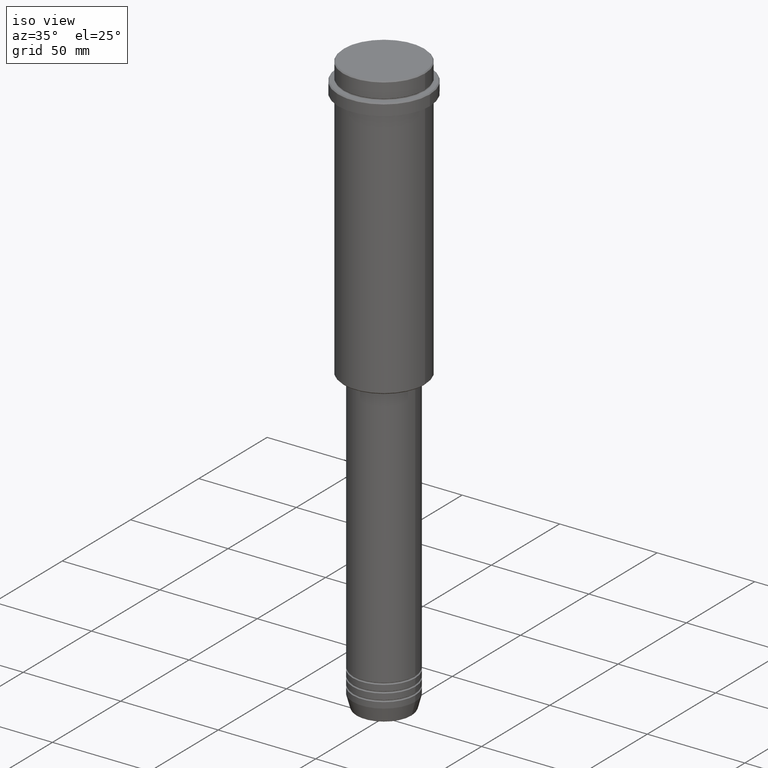
[diagram: clean part render]
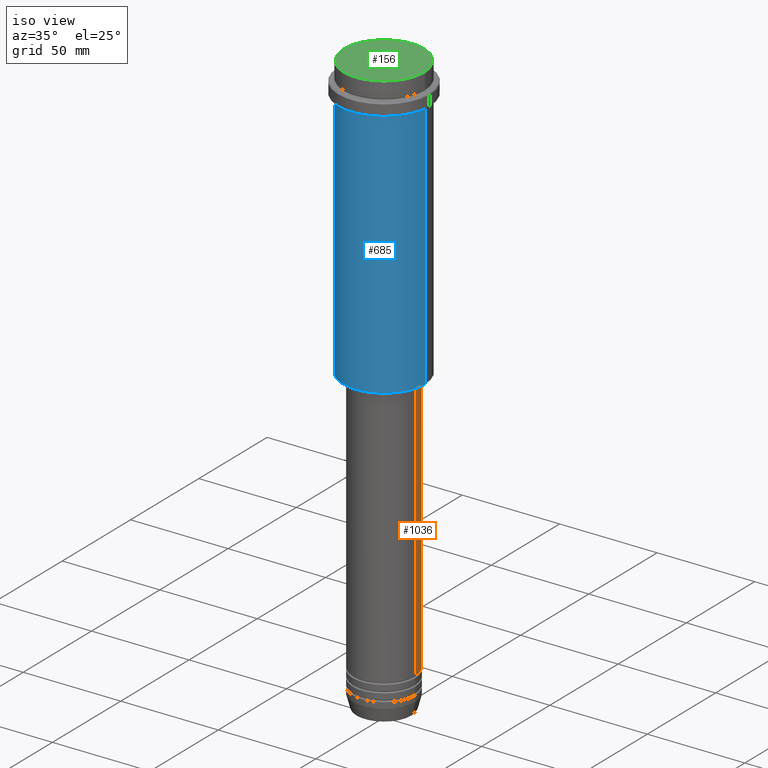
[diagram: same view with three faces highlighted in distinct colors, each labeled with its STEP entity id]
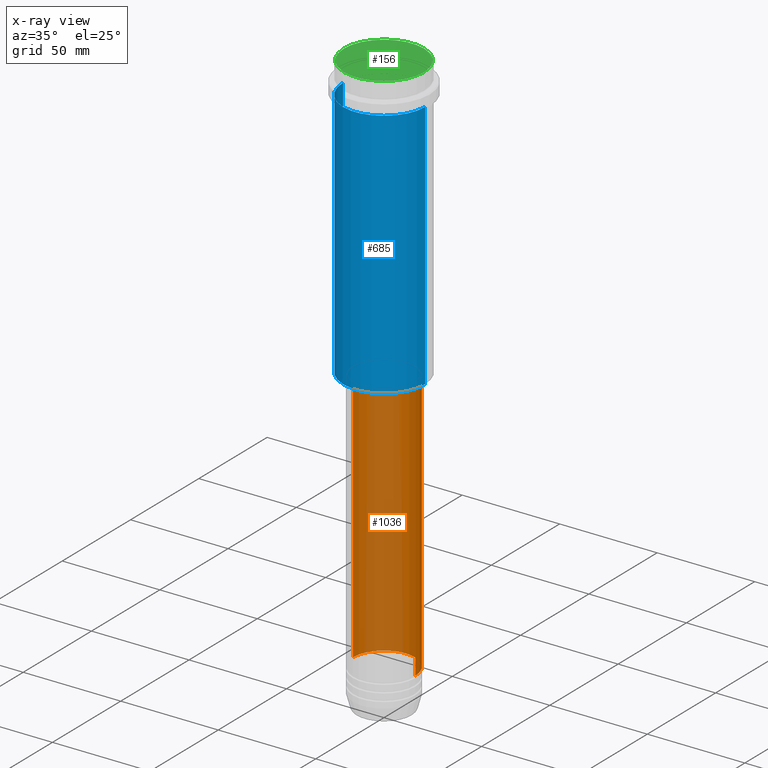
[diagram: x-ray of the same camera — body ghosted, the three highlighted faces saturated]
A machine part, iso view with three faces highlighted in distinct colors.
The next image is the same camera in x-ray (body ghosted, the three faces saturated) — at least one of them is partly hidden behind the body in this view.
Their STEP definitions:

[orange] entity #1036 — the highlighted cylindrical surface (partial cylindrical patch) has radius 16 mm, axis along (-0, -0, 1).
#27 = DIRECTION ( 'NONE',  ( -0.000000000000000000, -0.000000000000000000, 1.000000000000000000 ) ) ;
#72 = ORIENTED_EDGE ( 'NONE', *, *, #555, .T. ) ;
#89 = DIRECTION ( 'NONE',  ( 1.000000000000000000, 0.000000000000000000, 0.000000000000000000 ) ) ;
#189 = CARTESIAN_POINT ( 'NONE',  ( 0.000000000000000000, 0.000000000000000000, -280.9999999999998863 ) ) ;
#200 = VERTEX_POINT ( 'NONE', #1160 ) ;
#205 = DIRECTION ( 'NONE',  ( 1.000000000000000000, 0.000000000000000000, 0.000000000000000000 ) ) ;
#248 = EDGE_LOOP ( 'NONE', ( #853, #72, #844, #1037 ) ) ;
#263 = CARTESIAN_POINT ( 'NONE',  ( 16.00000000000000355, 0.000000000000000000, -145.9999999999999147 ) ) ;
#283 = DIRECTION ( 'NONE',  ( -0.000000000000000000, -0.000000000000000000, 1.000000000000000000 ) ) ;
#327 = CIRCLE ( 'NONE', #498, 16.00000000000000000 ) ;
#367 = AXIS2_PLACEMENT_3D ( 'NONE', #422, #1091, #205 ) ;
#384 = CYLINDRICAL_SURFACE ( 'NONE', #866, 16.00000000000000000 ) ;
#396 = VERTEX_POINT ( 'NONE', #1114 ) ;
#422 = CARTESIAN_POINT ( 'NONE',  ( 0.000000000000000000, 0.000000000000000000, -145.9999999999999147 ) ) ;
#444 = EDGE_CURVE ( 'NONE', #396, #1258, #682, .T. ) ;
#466 = CARTESIAN_POINT ( 'NONE',  ( -16.00000000000000000, 1.959434878635765131E-15, 0.000000000000000000 ) ) ;
#498 = AXIS2_PLACEMENT_3D ( 'NONE', #189, #1060, #89 ) ;
#502 = FACE_OUTER_BOUND ( 'NONE', #248, .T. ) ;
#511 = EDGE_CURVE ( 'NONE', #1258, #200, #749, .T. ) ;
#555 = EDGE_CURVE ( 'NONE', #1408, #200, #999, .T. ) ;
#682 = LINE ( 'NONE', #870, #1402 ) ;
#749 = CIRCLE ( 'NONE', #367, 16.00000000000000355 ) ;
#844 = ORIENTED_EDGE ( 'NONE', *, *, #511, .F. ) ;
#853 = ORIENTED_EDGE ( 'NONE', *, *, #1017, .T. ) ;
#866 = AXIS2_PLACEMENT_3D ( 'NONE', #1259, #283, #1154 ) ;
#870 = CARTESIAN_POINT ( 'NONE',  ( 16.00000000000000000, 0.000000000000000000, 0.000000000000000000 ) ) ;
#877 = DIRECTION ( 'NONE',  ( -0.000000000000000000, -0.000000000000000000, 1.000000000000000000 ) ) ;
#999 = LINE ( 'NONE', #466, #1094 ) ;
#1017 = EDGE_CURVE ( 'NONE', #396, #1408, #327, .T. ) ;
#1036 = ADVANCED_FACE ( 'NONE', ( #502 ), #384, .T. ) ;
#1037 = ORIENTED_EDGE ( 'NONE', *, *, #444, .F. ) ;
#1060 = DIRECTION ( 'NONE',  ( -0.000000000000000000, -0.000000000000000000, 1.000000000000000000 ) ) ;
#1091 = DIRECTION ( 'NONE',  ( -0.000000000000000000, -0.000000000000000000, 1.000000000000000000 ) ) ;
#1094 = VECTOR ( 'NONE', #27, 1000.000000000000000 ) ;
#1114 = CARTESIAN_POINT ( 'NONE',  ( 16.00000000000000000, 0.000000000000000000, -280.9999999999998863 ) ) ;
#1154 = DIRECTION ( 'NONE',  ( 1.000000000000000000, 0.000000000000000000, 0.000000000000000000 ) ) ;
#1160 = CARTESIAN_POINT ( 'NONE',  ( -16.00000000000000355, 1.959434878635765526E-15, -145.9999999999999147 ) ) ;
#1246 = CARTESIAN_POINT ( 'NONE',  ( -16.00000000000000000, 1.959434878635765131E-15, -280.9999999999998863 ) ) ;
#1258 = VERTEX_POINT ( 'NONE', #263 ) ;
#1259 = CARTESIAN_POINT ( 'NONE',  ( 0.000000000000000000, 0.000000000000000000, 0.000000000000000000 ) ) ;
#1402 = VECTOR ( 'NONE', #877, 1000.000000000000000 ) ;
#1408 = VERTEX_POINT ( 'NONE', #1246 ) ;

[blue] entity #685 — the highlighted cylindrical surface (partial cylindrical patch) has radius 21 mm, axis along (-0, -0, 1).
#14 = CIRCLE ( 'NONE', #638, 21.00000000000000000 ) ;
#28 = LINE ( 'NONE', #1232, #536 ) ;
#45 = VERTEX_POINT ( 'NONE', #250 ) ;
#102 = AXIS2_PLACEMENT_3D ( 'NONE', #1018, #673, #1348 ) ;
#120 = CARTESIAN_POINT ( 'NONE',  ( 21.00000000000000000, 0.000000000000000000, -16.00000000000000355 ) ) ;
#123 = AXIS2_PLACEMENT_3D ( 'NONE', #1347, #360, #1235 ) ;
#143 = CARTESIAN_POINT ( 'NONE',  ( 21.00000000000000000, 0.000000000000000000, -144.5000000000000568 ) ) ;
#147 = EDGE_CURVE ( 'NONE', #437, #45, #706, .T. ) ;
#250 = CARTESIAN_POINT ( 'NONE',  ( -21.00000000000000000, 2.571758278209441661E-15, -16.00000000000000355 ) ) ;
#267 = FACE_OUTER_BOUND ( 'NONE', #733, .T. ) ;
#323 = ORIENTED_EDGE ( 'NONE', *, *, #147, .F. ) ;
#360 = DIRECTION ( 'NONE',  ( -0.000000000000000000, -0.000000000000000000, 1.000000000000000000 ) ) ;
#379 = ORIENTED_EDGE ( 'NONE', *, *, #826, .F. ) ;
#397 = DIRECTION ( 'NONE',  ( -0.000000000000000000, -0.000000000000000000, 1.000000000000000000 ) ) ;
#437 = VERTEX_POINT ( 'NONE', #768 ) ;
#512 = VECTOR ( 'NONE', #397, 1000.000000000000000 ) ;
#524 = ORIENTED_EDGE ( 'NONE', *, *, #949, .T. ) ;
#536 = VECTOR ( 'NONE', #1117, 1000.000000000000000 ) ;
#537 = VERTEX_POINT ( 'NONE', #120 ) ;
#579 = CARTESIAN_POINT ( 'NONE',  ( 0.000000000000000000, 0.000000000000000000, -144.5000000000000568 ) ) ;
#583 = EDGE_CURVE ( 'NONE', #622, #537, #28, .T. ) ;
#605 = DIRECTION ( 'NONE',  ( -0.000000000000000000, -0.000000000000000000, 1.000000000000000000 ) ) ;
#622 = VERTEX_POINT ( 'NONE', #143 ) ;
#638 = AXIS2_PLACEMENT_3D ( 'NONE', #579, #605, #821 ) ;
#659 = CIRCLE ( 'NONE', #102, 21.00000000000000000 ) ;
#673 = DIRECTION ( 'NONE',  ( -0.000000000000000000, -0.000000000000000000, 1.000000000000000000 ) ) ;
#685 = ADVANCED_FACE ( 'NONE', ( #267 ), #910, .T. ) ;
#706 = LINE ( 'NONE', #941, #512 ) ;
#733 = EDGE_LOOP ( 'NONE', ( #323, #524, #1300, #379 ) ) ;
#768 = CARTESIAN_POINT ( 'NONE',  ( -21.00000000000000000, 2.571758278209441661E-15, -144.5000000000000568 ) ) ;
#821 = DIRECTION ( 'NONE',  ( -1.000000000000000000, 0.000000000000000000, 0.000000000000000000 ) ) ;
#826 = EDGE_CURVE ( 'NONE', #45, #537, #659, .T. ) ;
#910 = CYLINDRICAL_SURFACE ( 'NONE', #123, 21.00000000000000000 ) ;
#941 = CARTESIAN_POINT ( 'NONE',  ( -21.00000000000000000, 2.571758278209441661E-15, 0.000000000000000000 ) ) ;
#949 = EDGE_CURVE ( 'NONE', #437, #622, #14, .T. ) ;
#1018 = CARTESIAN_POINT ( 'NONE',  ( 0.000000000000000000, 0.000000000000000000, -16.00000000000000355 ) ) ;
#1117 = DIRECTION ( 'NONE',  ( -0.000000000000000000, -0.000000000000000000, 1.000000000000000000 ) ) ;
#1232 = CARTESIAN_POINT ( 'NONE',  ( 21.00000000000000000, 0.000000000000000000, 0.000000000000000000 ) ) ;
#1235 = DIRECTION ( 'NONE',  ( 1.000000000000000000, 0.000000000000000000, 0.000000000000000000 ) ) ;
#1300 = ORIENTED_EDGE ( 'NONE', *, *, #583, .T. ) ;
#1347 = CARTESIAN_POINT ( 'NONE',  ( 0.000000000000000000, 0.000000000000000000, 0.000000000000000000 ) ) ;
#1348 = DIRECTION ( 'NONE',  ( 1.000000000000000000, 0.000000000000000000, 0.000000000000000000 ) ) ;

[green] entity #156 — the highlighted planar face has unit normal (0, -0, 1).
#9 = AXIS2_PLACEMENT_3D ( 'NONE', #751, #1125, #357 ) ;
#61 = DIRECTION ( 'NONE',  ( 0.000000000000000000, -0.000000000000000000, 1.000000000000000000 ) ) ;
#156 = ADVANCED_FACE ( 'NONE', ( #1153 ), #813, .T. ) ;
#175 = DIRECTION ( 'NONE',  ( -0.000000000000000000, -0.000000000000000000, 1.000000000000000000 ) ) ;
#177 = DIRECTION ( 'NONE',  ( 1.000000000000000000, 0.000000000000000000, 0.000000000000000000 ) ) ;
#188 = CARTESIAN_POINT ( 'NONE',  ( 0.000000000000000000, 0.000000000000000000, 0.000000000000000000 ) ) ;
#202 = CARTESIAN_POINT ( 'NONE',  ( 20.50000000000001776, 2.541142108230759057E-15, 0.000000000000000000 ) ) ;
#357 = DIRECTION ( 'NONE',  ( 1.000000000000000000, 0.000000000000000000, 0.000000000000000000 ) ) ;
#386 = DIRECTION ( 'NONE',  ( 1.000000000000000000, 0.000000000000000000, 0.000000000000000000 ) ) ;
#394 = EDGE_CURVE ( 'NONE', #1149, #1113, #889, .T. ) ;
#409 = CIRCLE ( 'NONE', #676, 20.50000000000001776 ) ;
#436 = EDGE_LOOP ( 'NONE', ( #1197, #527 ) ) ;
#469 = AXIS2_PLACEMENT_3D ( 'NONE', #188, #61, #177 ) ;
#527 = ORIENTED_EDGE ( 'NONE', *, *, #1413, .T. ) ;
#589 = CARTESIAN_POINT ( 'NONE',  ( 0.000000000000000000, 0.000000000000000000, 0.000000000000000000 ) ) ;
#676 = AXIS2_PLACEMENT_3D ( 'NONE', #589, #175, #386 ) ;
#751 = CARTESIAN_POINT ( 'NONE',  ( 0.000000000000000000, 0.000000000000000000, 0.000000000000000000 ) ) ;
#759 = CARTESIAN_POINT ( 'NONE',  ( -20.50000000000001776, 0.000000000000000000, 0.000000000000000000 ) ) ;
#813 = PLANE ( 'NONE',  #469 ) ;
#889 = CIRCLE ( 'NONE', #9, 20.50000000000001776 ) ;
#1113 = VERTEX_POINT ( 'NONE', #202 ) ;
#1125 = DIRECTION ( 'NONE',  ( -0.000000000000000000, -0.000000000000000000, 1.000000000000000000 ) ) ;
#1149 = VERTEX_POINT ( 'NONE', #759 ) ;
#1153 = FACE_OUTER_BOUND ( 'NONE', #436, .T. ) ;
#1197 = ORIENTED_EDGE ( 'NONE', *, *, #394, .T. ) ;
#1413 = EDGE_CURVE ( 'NONE', #1113, #1149, #409, .T. ) ;